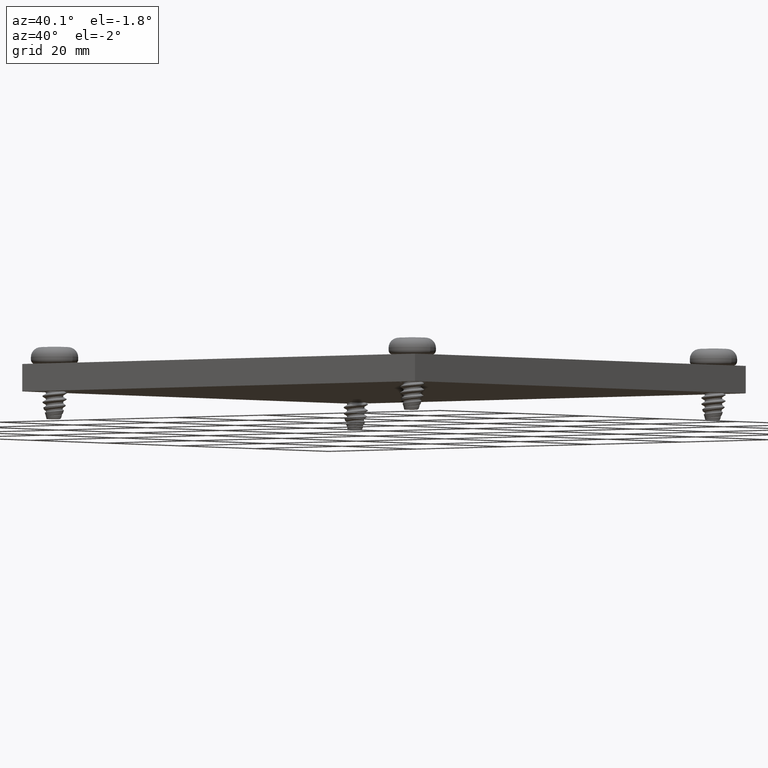
[diagram: clean part render]
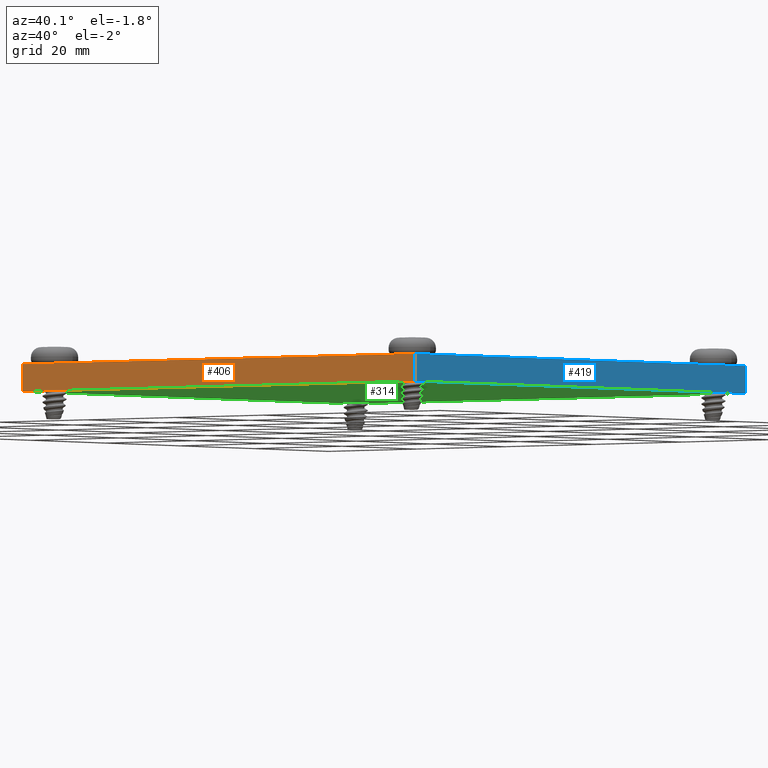
[diagram: same view with three faces highlighted in distinct colors, each labeled with its STEP entity id]
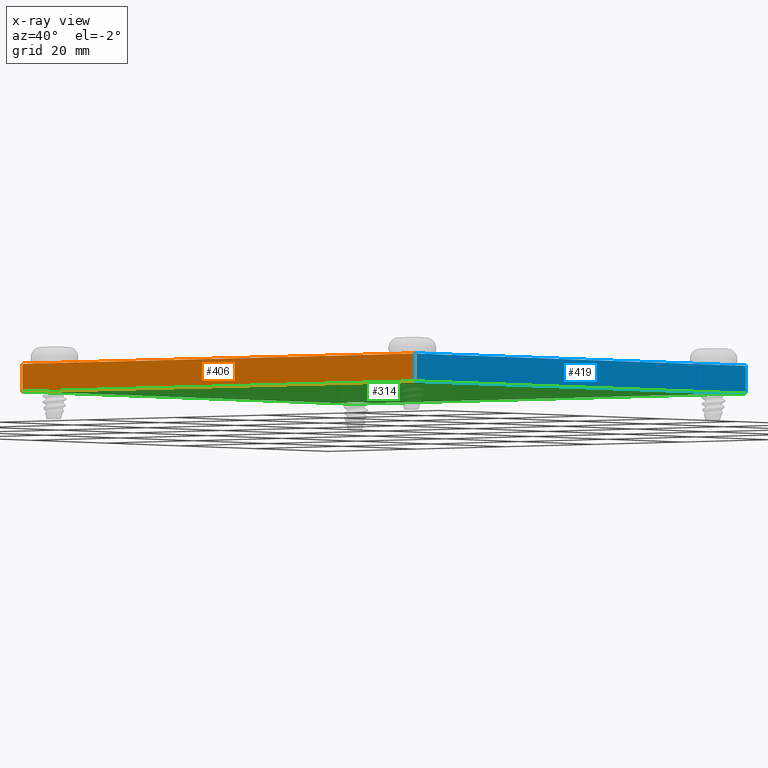
[diagram: x-ray of the same camera — body ghosted, the three highlighted faces saturated]
A machine part, auxiliary view with three faces highlighted in distinct colors.
The next image is the same camera in x-ray (body ghosted, the three faces saturated) — at least one of them is partly hidden behind the body in this view.
Their STEP definitions:

[orange] entity #406 — the highlighted planar face has unit normal (0, -1, 0).
#41=DIRECTION('',(1.E0,0.E0,0.E0));
#42=VECTOR('',#41,3.5E0);
#43=CARTESIAN_POINT('',(-1.75E0,-1.75E0,0.E0));
#44=LINE('',#43,#42);
#105=DIRECTION('',(1.E0,0.E0,0.E0));
#106=VECTOR('',#105,3.5E0);
#107=CARTESIAN_POINT('',(-1.75E0,-1.75E0,-1.875E-1));
#108=LINE('',#107,#106);
#145=DIRECTION('',(0.E0,0.E0,-1.E0));
#146=VECTOR('',#145,1.875E-1);
#147=CARTESIAN_POINT('',(-1.75E0,-1.75E0,0.E0));
#148=LINE('',#147,#146);
#149=DIRECTION('',(0.E0,0.E0,-1.E0));
#150=VECTOR('',#149,1.875E-1);
#151=CARTESIAN_POINT('',(1.75E0,-1.75E0,0.E0));
#152=LINE('',#151,#150);
#177=CARTESIAN_POINT('',(-1.75E0,-1.75E0,0.E0));
#178=CARTESIAN_POINT('',(1.75E0,-1.75E0,0.E0));
#179=VERTEX_POINT('',#177);
#180=VERTEX_POINT('',#178);
#201=CARTESIAN_POINT('',(-1.75E0,-1.75E0,-1.875E-1));
#202=CARTESIAN_POINT('',(1.75E0,-1.75E0,-1.875E-1));
#203=VERTEX_POINT('',#201);
#204=VERTEX_POINT('',#202);
#393=CARTESIAN_POINT('',(-1.75E0,-1.75E0,0.E0));
#394=DIRECTION('',(0.E0,-1.E0,0.E0));
#395=DIRECTION('',(1.E0,0.E0,0.E0));
#396=AXIS2_PLACEMENT_3D('',#393,#394,#395);
#397=PLANE('',#396);
#398=ORIENTED_EDGE('',*,*,#214,.T.);
#400=ORIENTED_EDGE('',*,*,#399,.T.);
#401=ORIENTED_EDGE('',*,*,#282,.F.);
#403=ORIENTED_EDGE('',*,*,#402,.F.);
#404=EDGE_LOOP('',(#398,#400,#401,#403));
#405=FACE_OUTER_BOUND('',#404,.F.);
#406=ADVANCED_FACE('',(#405),#397,.T.);
#214=EDGE_CURVE('',#179,#180,#44,.T.);
#282=EDGE_CURVE('',#203,#204,#108,.T.);
#399=EDGE_CURVE('',#180,#204,#152,.T.);
#402=EDGE_CURVE('',#179,#203,#148,.T.);

[blue] entity #419 — the highlighted planar face has unit normal (1, 0, 0).
#53=DIRECTION('',(0.E0,1.E0,0.E0));
#54=VECTOR('',#53,3.5E0);
#55=CARTESIAN_POINT('',(1.75E0,-1.75E0,0.E0));
#56=LINE('',#55,#54);
#109=DIRECTION('',(0.E0,1.E0,0.E0));
#110=VECTOR('',#109,3.5E0);
#111=CARTESIAN_POINT('',(1.75E0,-1.75E0,-1.875E-1));
#112=LINE('',#111,#110);
#149=DIRECTION('',(0.E0,0.E0,-1.E0));
#150=VECTOR('',#149,1.875E-1);
#151=CARTESIAN_POINT('',(1.75E0,-1.75E0,0.E0));
#152=LINE('',#151,#150);
#153=DIRECTION('',(0.E0,0.E0,-1.E0));
#154=VECTOR('',#153,1.875E-1);
#155=CARTESIAN_POINT('',(1.75E0,1.75E0,0.E0));
#156=LINE('',#155,#154);
#178=CARTESIAN_POINT('',(1.75E0,-1.75E0,0.E0));
#180=VERTEX_POINT('',#178);
#181=CARTESIAN_POINT('',(1.75E0,1.75E0,0.E0));
#182=VERTEX_POINT('',#181);
#202=CARTESIAN_POINT('',(1.75E0,-1.75E0,-1.875E-1));
#204=VERTEX_POINT('',#202);
#205=CARTESIAN_POINT('',(1.75E0,1.75E0,-1.875E-1));
#206=VERTEX_POINT('',#205);
#407=CARTESIAN_POINT('',(1.75E0,-1.75E0,0.E0));
#408=DIRECTION('',(1.E0,0.E0,0.E0));
#409=DIRECTION('',(0.E0,1.E0,0.E0));
#410=AXIS2_PLACEMENT_3D('',#407,#408,#409);
#411=PLANE('',#410);
#412=ORIENTED_EDGE('',*,*,#220,.T.);
#414=ORIENTED_EDGE('',*,*,#413,.T.);
#415=ORIENTED_EDGE('',*,*,#284,.F.);
#416=ORIENTED_EDGE('',*,*,#399,.F.);
#417=EDGE_LOOP('',(#412,#414,#415,#416));
#418=FACE_OUTER_BOUND('',#417,.F.);
#419=ADVANCED_FACE('',(#418),#411,.T.);
#220=EDGE_CURVE('',#180,#182,#56,.T.);
#284=EDGE_CURVE('',#204,#206,#112,.T.);
#399=EDGE_CURVE('',#180,#204,#152,.T.);
#413=EDGE_CURVE('',#182,#206,#156,.T.);

[green] entity #314 — the highlighted planar face has unit normal (0, 0, 1).
#65=CARTESIAN_POINT('',(-1.59375E0,1.59375E0,-1.875E-1));
#66=DIRECTION('',(0.E0,0.E0,-1.E0));
#67=DIRECTION('',(1.E0,0.E0,0.E0));
#68=AXIS2_PLACEMENT_3D('',#65,#66,#67);
#70=CARTESIAN_POINT('',(-1.59375E0,1.59375E0,-1.875E-1));
#71=DIRECTION('',(0.E0,0.E0,-1.E0));
#72=DIRECTION('',(-1.E0,0.E0,0.E0));
#73=AXIS2_PLACEMENT_3D('',#70,#71,#72);
#75=CARTESIAN_POINT('',(1.59375E0,1.59375E0,-1.875E-1));
#76=DIRECTION('',(0.E0,0.E0,-1.E0));
#77=DIRECTION('',(1.E0,0.E0,0.E0));
#78=AXIS2_PLACEMENT_3D('',#75,#76,#77);
#80=CARTESIAN_POINT('',(1.59375E0,1.59375E0,-1.875E-1));
#81=DIRECTION('',(0.E0,0.E0,-1.E0));
#82=DIRECTION('',(-1.E0,0.E0,0.E0));
#83=AXIS2_PLACEMENT_3D('',#80,#81,#82);
#85=CARTESIAN_POINT('',(-1.59375E0,-1.59375E0,-1.875E-1));
#86=DIRECTION('',(0.E0,0.E0,-1.E0));
#87=DIRECTION('',(1.E0,0.E0,0.E0));
#88=AXIS2_PLACEMENT_3D('',#85,#86,#87);
#90=CARTESIAN_POINT('',(-1.59375E0,-1.59375E0,-1.875E-1));
#91=DIRECTION('',(0.E0,0.E0,-1.E0));
#92=DIRECTION('',(-1.E0,0.E0,0.E0));
#93=AXIS2_PLACEMENT_3D('',#90,#91,#92);
#95=CARTESIAN_POINT('',(1.59375E0,-1.59375E0,-1.875E-1));
#96=DIRECTION('',(0.E0,0.E0,-1.E0));
#97=DIRECTION('',(1.E0,0.E0,0.E0));
#98=AXIS2_PLACEMENT_3D('',#95,#96,#97);
#100=CARTESIAN_POINT('',(1.59375E0,-1.59375E0,-1.875E-1));
#101=DIRECTION('',(0.E0,0.E0,-1.E0));
#102=DIRECTION('',(-1.E0,0.E0,0.E0));
#103=AXIS2_PLACEMENT_3D('',#100,#101,#102);
#105=DIRECTION('',(1.E0,0.E0,0.E0));
#106=VECTOR('',#105,3.5E0);
#107=CARTESIAN_POINT('',(-1.75E0,-1.75E0,-1.875E-1));
#108=LINE('',#107,#106);
#109=DIRECTION('',(0.E0,1.E0,0.E0));
#110=VECTOR('',#109,3.5E0);
#111=CARTESIAN_POINT('',(1.75E0,-1.75E0,-1.875E-1));
#112=LINE('',#111,#110);
#113=DIRECTION('',(-1.E0,0.E0,0.E0));
#114=VECTOR('',#113,3.5E0);
#115=CARTESIAN_POINT('',(1.75E0,1.75E0,-1.875E-1));
#116=LINE('',#115,#114);
#117=DIRECTION('',(0.E0,-1.E0,0.E0));
#118=VECTOR('',#117,3.5E0);
#119=CARTESIAN_POINT('',(-1.75E0,1.75E0,-1.875E-1));
#120=LINE('',#119,#118);
#185=CARTESIAN_POINT('',(-1.50025E0,1.59375E0,-1.875E-1));
#186=CARTESIAN_POINT('',(-1.68725E0,1.59375E0,-1.875E-1));
#187=VERTEX_POINT('',#185);
#188=VERTEX_POINT('',#186);
#189=CARTESIAN_POINT('',(1.68725E0,1.59375E0,-1.875E-1));
#190=CARTESIAN_POINT('',(1.50025E0,1.59375E0,-1.875E-1));
#191=VERTEX_POINT('',#189);
#192=VERTEX_POINT('',#190);
#193=CARTESIAN_POINT('',(-1.50025E0,-1.59375E0,-1.875E-1));
#194=CARTESIAN_POINT('',(-1.68725E0,-1.59375E0,-1.875E-1));
#195=VERTEX_POINT('',#193);
#196=VERTEX_POINT('',#194);
#197=CARTESIAN_POINT('',(1.68725E0,-1.59375E0,-1.875E-1));
#198=CARTESIAN_POINT('',(1.50025E0,-1.59375E0,-1.875E-1));
#199=VERTEX_POINT('',#197);
#200=VERTEX_POINT('',#198);
#201=CARTESIAN_POINT('',(-1.75E0,-1.75E0,-1.875E-1));
#202=CARTESIAN_POINT('',(1.75E0,-1.75E0,-1.875E-1));
#203=VERTEX_POINT('',#201);
#204=VERTEX_POINT('',#202);
#205=CARTESIAN_POINT('',(1.75E0,1.75E0,-1.875E-1));
#206=VERTEX_POINT('',#205);
#207=CARTESIAN_POINT('',(-1.75E0,1.75E0,-1.875E-1));
#208=VERTEX_POINT('',#207);
#277=CARTESIAN_POINT('',(0.E0,0.E0,-1.875E-1));
#278=DIRECTION('',(0.E0,0.E0,1.E0));
#279=DIRECTION('',(1.E0,0.E0,0.E0));
#280=AXIS2_PLACEMENT_3D('',#277,#278,#279);
#281=PLANE('',#280);
#283=ORIENTED_EDGE('',*,*,#282,.T.);
#285=ORIENTED_EDGE('',*,*,#284,.T.);
#287=ORIENTED_EDGE('',*,*,#286,.T.);
#289=ORIENTED_EDGE('',*,*,#288,.T.);
#290=EDGE_LOOP('',(#283,#285,#287,#289));
#291=FACE_OUTER_BOUND('',#290,.F.);
#293=ORIENTED_EDGE('',*,*,#292,.T.);
#295=ORIENTED_EDGE('',*,*,#294,.T.);
#296=EDGE_LOOP('',(#293,#295));
#297=FACE_BOUND('',#296,.F.);
#299=ORIENTED_EDGE('',*,*,#298,.T.);
#301=ORIENTED_EDGE('',*,*,#300,.T.);
#302=EDGE_LOOP('',(#299,#301));
#303=FACE_BOUND('',#302,.F.);
#305=ORIENTED_EDGE('',*,*,#304,.T.);
#307=ORIENTED_EDGE('',*,*,#306,.T.);
#308=EDGE_LOOP('',(#305,#307));
#309=FACE_BOUND('',#308,.F.);
#310=ORIENTED_EDGE('',*,*,#257,.T.);
#311=ORIENTED_EDGE('',*,*,#271,.T.);
#312=EDGE_LOOP('',(#310,#311));
#313=FACE_BOUND('',#312,.F.);
#314=ADVANCED_FACE('',(#291,#297,#303,#309,#313),#281,.F.);
#69=CIRCLE('',#68,9.35E-2);
#74=CIRCLE('',#73,9.35E-2);
#79=CIRCLE('',#78,9.35E-2);
#84=CIRCLE('',#83,9.35E-2);
#89=CIRCLE('',#88,9.35E-2);
#94=CIRCLE('',#93,9.35E-2);
#99=CIRCLE('',#98,9.35E-2);
#104=CIRCLE('',#103,9.35E-2);
#257=EDGE_CURVE('',#187,#188,#69,.T.);
#271=EDGE_CURVE('',#188,#187,#74,.T.);
#282=EDGE_CURVE('',#203,#204,#108,.T.);
#284=EDGE_CURVE('',#204,#206,#112,.T.);
#286=EDGE_CURVE('',#206,#208,#116,.T.);
#288=EDGE_CURVE('',#208,#203,#120,.T.);
#292=EDGE_CURVE('',#191,#192,#79,.T.);
#294=EDGE_CURVE('',#192,#191,#84,.T.);
#298=EDGE_CURVE('',#195,#196,#89,.T.);
#300=EDGE_CURVE('',#196,#195,#94,.T.);
#304=EDGE_CURVE('',#199,#200,#99,.T.);
#306=EDGE_CURVE('',#200,#199,#104,.T.);